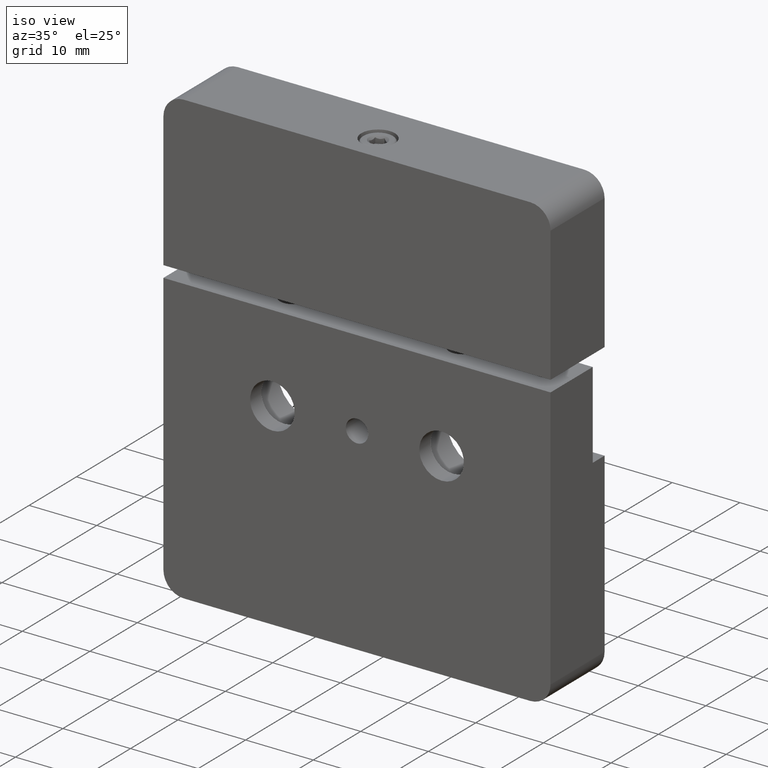
[diagram: clean part render]
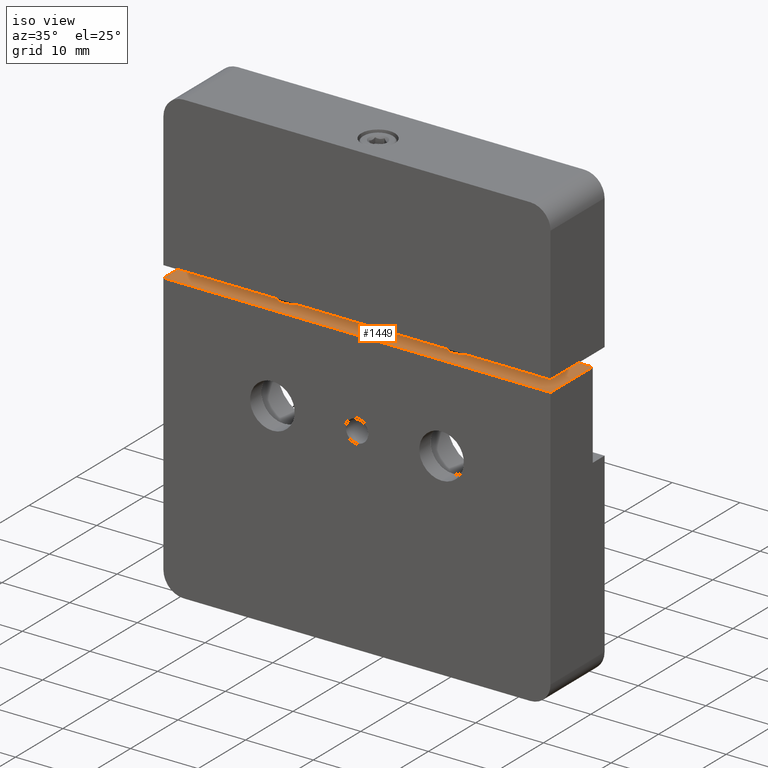
[diagram: same view with one face highlighted and labeled with its STEP entity id]
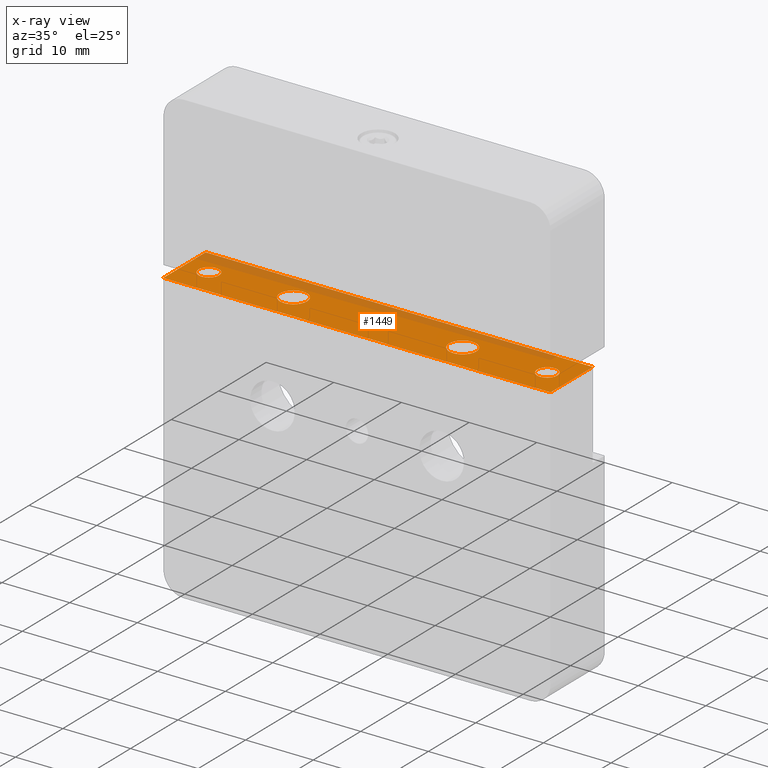
[diagram: x-ray of the same camera — body ghosted, the highlighted face saturated]
A machine part, iso view. The second image highlights one B-rep face of the part: STEP entity #1449.
The next image is the same camera in x-ray: the body ghosted, the highlighted face saturated — about 20% of this face is hidden behind the body in this view.
In plain terms, the highlighted planar face has unit normal (0, 0, -1).
Its self-contained STEP definition (entity closure, byte-faithful):
#47 = CIRCLE ( 'NONE', #2124, 1.024999999999989475 ) ;
#55 = VERTEX_POINT ( 'NONE', #365 ) ;
#57 = FACE_BOUND ( 'NONE', #947, .T. ) ;
#59 = CARTESIAN_POINT ( 'NONE',  ( -28.59999999999998721, 0.000000000000000000, 21.00000000000000000 ) ) ;
#63 = DIRECTION ( 'NONE',  ( 0.000000000000000000, 0.000000000000000000, 1.000000000000000000 ) ) ;
#119 = ORIENTED_EDGE ( 'NONE', *, *, #3440, .F. ) ;
#251 = CIRCLE ( 'NONE', #2560, 2.000000000000000000 ) ;
#278 = VERTEX_POINT ( 'NONE', #1892 ) ;
#297 = DIRECTION ( 'NONE',  ( -1.000000000000000000, 0.000000000000000000, 0.000000000000000000 ) ) ;
#343 = CARTESIAN_POINT ( 'NONE',  ( 23.50000000000000000, 4.450000000000006395, 21.00000000000000000 ) ) ;
#365 = CARTESIAN_POINT ( 'NONE',  ( 26.50000000000000355, 4.450000000000006395, 21.00000000000000000 ) ) ;
#375 = DIRECTION ( 'NONE',  ( 1.000000000000000000, 0.000000000000000000, 0.000000000000000000 ) ) ;
#400 = DIRECTION ( 'NONE',  ( 0.000000000000000000, 0.000000000000000000, 1.000000000000000000 ) ) ;
#431 = EDGE_CURVE ( 'NONE', #820, #2496, #251, .T. ) ;
#489 = VERTEX_POINT ( 'NONE', #2293 ) ;
#536 = DIRECTION ( 'NONE',  ( 0.000000000000000000, 0.000000000000000000, 1.000000000000000000 ) ) ;
#593 = DIRECTION ( 'NONE',  ( -0.000000000000000000, -0.000000000000000000, 1.000000000000000000 ) ) ;
#600 = FACE_BOUND ( 'NONE', #2818, .T. ) ;
#601 = CARTESIAN_POINT ( 'NONE',  ( -28.59999999999998721, 8.900000000000000355, 21.00000000000000000 ) ) ;
#610 = CIRCLE ( 'NONE', #2920, 1.500000000000001332 ) ;
#621 = CARTESIAN_POINT ( 'NONE',  ( -10.50000000000000000, 4.450000000000001954, 21.00000000000000000 ) ) ;
#650 = LINE ( 'NONE', #2356, #720 ) ;
#669 = CARTESIAN_POINT ( 'NONE',  ( 0.000000000000000000, 4.450000000000003730, 21.00000000000000000 ) ) ;
#714 = CARTESIAN_POINT ( 'NONE',  ( 25.00000000000000000, 4.450000000000006395, 21.00000000000000000 ) ) ;
#720 = VECTOR ( 'NONE', #2321, 1000.000000000000000 ) ;
#770 = CARTESIAN_POINT ( 'NONE',  ( 12.50000000000000000, 4.450000000000005507, 21.00000000000000000 ) ) ;
#785 = AXIS2_PLACEMENT_3D ( 'NONE', #1599, #1894, #2157 ) ;
#799 = VERTEX_POINT ( 'NONE', #1685 ) ;
#820 = VERTEX_POINT ( 'NONE', #621 ) ;
#823 = CIRCLE ( 'NONE', #2956, 2.000000000000000000 ) ;
#849 = DIRECTION ( 'NONE',  ( 0.000000000000000000, 0.000000000000000000, -1.000000000000000000 ) ) ;
#857 = EDGE_CURVE ( 'NONE', #941, #1996, #1817, .T. ) ;
#859 = EDGE_LOOP ( 'NONE', ( #119, #1593, #2205, #882 ) ) ;
#878 = CARTESIAN_POINT ( 'NONE',  ( -14.50000000000000000, 4.450000000000001954, 21.00000000000000000 ) ) ;
#879 = ORIENTED_EDGE ( 'NONE', *, *, #1926, .F. ) ;
#882 = ORIENTED_EDGE ( 'NONE', *, *, #1422, .T. ) ;
#905 = AXIS2_PLACEMENT_3D ( 'NONE', #669, #1796, #2881 ) ;
#941 = VERTEX_POINT ( 'NONE', #1187 ) ;
#947 = EDGE_LOOP ( 'NONE', ( #3046, #2278 ) ) ;
#958 = CIRCLE ( 'NONE', #905, 1.024999999999989475 ) ;
#1037 = CARTESIAN_POINT ( 'NONE',  ( -23.50000000000000000, 4.450000000000000178, 21.00000000000000000 ) ) ;
#1062 = CARTESIAN_POINT ( 'NONE',  ( -25.00000000000000000, 4.450000000000000178, 21.00000000000000000 ) ) ;
#1146 = DIRECTION ( 'NONE',  ( -1.000000000000000000, 0.000000000000000000, 0.000000000000000000 ) ) ;
#1187 = CARTESIAN_POINT ( 'NONE',  ( 10.50000000000000000, 4.450000000000005507, 21.00000000000000000 ) ) ;
#1235 = CIRCLE ( 'NONE', #3236, 1.500000000000001332 ) ;
#1245 = VERTEX_POINT ( 'NONE', #1037 ) ;
#1378 = CARTESIAN_POINT ( 'NONE',  ( 28.60000000000000142, 0.000000000000000000, 21.00000000000000000 ) ) ;
#1387 = CARTESIAN_POINT ( 'NONE',  ( -12.50000000000000000, 4.450000000000001954, 21.00000000000000000 ) ) ;
#1395 = CARTESIAN_POINT ( 'NONE',  ( -26.50000000000000355, 4.450000000000000178, 21.00000000000000000 ) ) ;
#1416 = DIRECTION ( 'NONE',  ( 1.000000000000000000, 0.000000000000000000, 0.000000000000000000 ) ) ;
#1422 = EDGE_CURVE ( 'NONE', #3290, #2281, #1680, .T. ) ;
#1433 = AXIS2_PLACEMENT_3D ( 'NONE', #770, #2450, #3528 ) ;
#1436 = CARTESIAN_POINT ( 'NONE',  ( -28.59999999999998721, 11.40000000000000036, 21.00000000000000000 ) ) ;
#1444 = VERTEX_POINT ( 'NONE', #343 ) ;
#1449 = ADVANCED_FACE ( 'NONE', ( #2250, #2503, #1978, #57, #600, #2303 ), #3313, .F. ) ;
#1453 = ORIENTED_EDGE ( 'NONE', *, *, #431, .F. ) ;
#1503 = CARTESIAN_POINT ( 'NONE',  ( 1.024999999999989475, 4.450000000000003730, 21.00000000000000000 ) ) ;
#1581 = DIRECTION ( 'NONE',  ( -1.000000000000000000, 0.000000000000000000, 0.000000000000000000 ) ) ;
#1593 = ORIENTED_EDGE ( 'NONE', *, *, #2407, .T. ) ;
#1599 = CARTESIAN_POINT ( 'NONE',  ( -25.00000000000000000, 4.450000000000000178, 21.00000000000000000 ) ) ;
#1602 = DIRECTION ( 'NONE',  ( 0.000000000000000000, 0.000000000000000000, 1.000000000000000000 ) ) ;
#1612 = CARTESIAN_POINT ( 'NONE',  ( -28.59999999999998721, 11.40000000000000036, 21.00000000000000000 ) ) ;
#1630 = DIRECTION ( 'NONE',  ( 1.000000000000000000, 0.000000000000000000, 0.000000000000000000 ) ) ;
#1655 = DIRECTION ( 'NONE',  ( 1.000000000000000000, 0.000000000000000000, 0.000000000000000000 ) ) ;
#1680 = LINE ( 'NONE', #1963, #2044 ) ;
#1685 = CARTESIAN_POINT ( 'NONE',  ( -1.024999999999989475, 4.450000000000003730, 21.00000000000000000 ) ) ;
#1694 = LINE ( 'NONE', #601, #2815 ) ;
#1717 = DIRECTION ( 'NONE',  ( -1.000000000000000000, 0.000000000000000000, 0.000000000000000000 ) ) ;
#1723 = CARTESIAN_POINT ( 'NONE',  ( 25.00000000000000000, 4.450000000000006395, 21.00000000000000000 ) ) ;
#1726 = ORIENTED_EDGE ( 'NONE', *, *, #2163, .F. ) ;
#1779 = CARTESIAN_POINT ( 'NONE',  ( 14.50000000000000000, 4.450000000000005507, 21.00000000000000000 ) ) ;
#1796 = DIRECTION ( 'NONE',  ( -0.000000000000000000, -0.000000000000000000, 1.000000000000000000 ) ) ;
#1817 = CIRCLE ( 'NONE', #2218, 2.000000000000000000 ) ;
#1831 = EDGE_CURVE ( 'NONE', #489, #3290, #2423, .T. ) ;
#1852 = EDGE_LOOP ( 'NONE', ( #3050, #2685 ) ) ;
#1892 = CARTESIAN_POINT ( 'NONE',  ( 28.60000000000000142, 8.899999999999998579, 21.00000000000000000 ) ) ;
#1894 = DIRECTION ( 'NONE',  ( 0.000000000000000000, 0.000000000000000000, 1.000000000000000000 ) ) ;
#1926 = EDGE_CURVE ( 'NONE', #2496, #820, #823, .T. ) ;
#1963 = CARTESIAN_POINT ( 'NONE',  ( -28.59999999999998721, 0.000000000000000000, 21.00000000000000000 ) ) ;
#1973 = CARTESIAN_POINT ( 'NONE',  ( 0.000000000000000000, 4.450000000000003730, 21.00000000000000000 ) ) ;
#1978 = FACE_BOUND ( 'NONE', #1852, .T. ) ;
#1996 = VERTEX_POINT ( 'NONE', #1779 ) ;
#2012 = AXIS2_PLACEMENT_3D ( 'NONE', #1062, #1602, #2490 ) ;
#2044 = VECTOR ( 'NONE', #1416, 1000.000000000000000 ) ;
#2124 = AXIS2_PLACEMENT_3D ( 'NONE', #1973, #593, #375 ) ;
#2157 = DIRECTION ( 'NONE',  ( 1.000000000000000000, 0.000000000000000000, 0.000000000000000000 ) ) ;
#2163 = EDGE_CURVE ( 'NONE', #55, #1444, #1235, .T. ) ;
#2169 = DIRECTION ( 'NONE',  ( 0.000000000000000000, 0.000000000000000000, 1.000000000000000000 ) ) ;
#2205 = ORIENTED_EDGE ( 'NONE', *, *, #1831, .T. ) ;
#2218 = AXIS2_PLACEMENT_3D ( 'NONE', #2222, #3303, #297 ) ;
#2222 = CARTESIAN_POINT ( 'NONE',  ( 12.50000000000000000, 4.450000000000005507, 21.00000000000000000 ) ) ;
#2250 = FACE_BOUND ( 'NONE', #3099, .T. ) ;
#2272 = EDGE_CURVE ( 'NONE', #1996, #941, #2926, .T. ) ;
#2278 = ORIENTED_EDGE ( 'NONE', *, *, #857, .F. ) ;
#2281 = VERTEX_POINT ( 'NONE', #1378 ) ;
#2282 = VERTEX_POINT ( 'NONE', #1395 ) ;
#2293 = CARTESIAN_POINT ( 'NONE',  ( -28.60000000000000497, 8.899999999999998579, 21.00000000000000000 ) ) ;
#2299 = EDGE_CURVE ( 'NONE', #1245, #2282, #2534, .T. ) ;
#2303 = FACE_OUTER_BOUND ( 'NONE', #859, .T. ) ;
#2321 = DIRECTION ( 'NONE',  ( -0.000000000000000000, -1.000000000000000000, -0.000000000000000000 ) ) ;
#2356 = CARTESIAN_POINT ( 'NONE',  ( 28.60000000000000142, 11.40000000000000036, 21.00000000000000000 ) ) ;
#2407 = EDGE_CURVE ( 'NONE', #278, #489, #1694, .T. ) ;
#2423 = LINE ( 'NONE', #1612, #2786 ) ;
#2450 = DIRECTION ( 'NONE',  ( 0.000000000000000000, 0.000000000000000000, 1.000000000000000000 ) ) ;
#2490 = DIRECTION ( 'NONE',  ( 1.000000000000000000, 0.000000000000000000, 0.000000000000000000 ) ) ;
#2496 = VERTEX_POINT ( 'NONE', #878 ) ;
#2503 = FACE_BOUND ( 'NONE', #3539, .T. ) ;
#2523 = EDGE_CURVE ( 'NONE', #799, #2586, #47, .T. ) ;
#2524 = ORIENTED_EDGE ( 'NONE', *, *, #3100, .F. ) ;
#2534 = CIRCLE ( 'NONE', #785, 1.500000000000001332 ) ;
#2560 = AXIS2_PLACEMENT_3D ( 'NONE', #1387, #2169, #1630 ) ;
#2586 = VERTEX_POINT ( 'NONE', #1503 ) ;
#2685 = ORIENTED_EDGE ( 'NONE', *, *, #3139, .F. ) ;
#2709 = DIRECTION ( 'NONE',  ( -0.000000000000000000, -1.000000000000000000, -0.000000000000000000 ) ) ;
#2786 = VECTOR ( 'NONE', #2709, 1000.000000000000000 ) ;
#2815 = VECTOR ( 'NONE', #1717, 1000.000000000000000 ) ;
#2818 = EDGE_LOOP ( 'NONE', ( #1453, #879 ) ) ;
#2881 = DIRECTION ( 'NONE',  ( 1.000000000000000000, 0.000000000000000000, 0.000000000000000000 ) ) ;
#2897 = EDGE_CURVE ( 'NONE', #1444, #55, #610, .T. ) ;
#2920 = AXIS2_PLACEMENT_3D ( 'NONE', #1723, #63, #1146 ) ;
#2923 = CIRCLE ( 'NONE', #2012, 1.500000000000001332 ) ;
#2926 = CIRCLE ( 'NONE', #1433, 2.000000000000000000 ) ;
#2955 = AXIS2_PLACEMENT_3D ( 'NONE', #1436, #849, #3330 ) ;
#2956 = AXIS2_PLACEMENT_3D ( 'NONE', #3029, #536, #1655 ) ;
#3029 = CARTESIAN_POINT ( 'NONE',  ( -12.50000000000000000, 4.450000000000001954, 21.00000000000000000 ) ) ;
#3046 = ORIENTED_EDGE ( 'NONE', *, *, #2272, .F. ) ;
#3050 = ORIENTED_EDGE ( 'NONE', *, *, #2299, .F. ) ;
#3059 = ORIENTED_EDGE ( 'NONE', *, *, #2523, .F. ) ;
#3099 = EDGE_LOOP ( 'NONE', ( #2524, #3059 ) ) ;
#3100 = EDGE_CURVE ( 'NONE', #2586, #799, #958, .T. ) ;
#3139 = EDGE_CURVE ( 'NONE', #2282, #1245, #2923, .T. ) ;
#3236 = AXIS2_PLACEMENT_3D ( 'NONE', #714, #400, #1581 ) ;
#3290 = VERTEX_POINT ( 'NONE', #59 ) ;
#3303 = DIRECTION ( 'NONE',  ( 0.000000000000000000, 0.000000000000000000, 1.000000000000000000 ) ) ;
#3313 = PLANE ( 'NONE',  #2955 ) ;
#3330 = DIRECTION ( 'NONE',  ( -1.000000000000000000, 0.000000000000000000, -0.000000000000000000 ) ) ;
#3440 = EDGE_CURVE ( 'NONE', #278, #2281, #650, .T. ) ;
#3470 = ORIENTED_EDGE ( 'NONE', *, *, #2897, .F. ) ;
#3528 = DIRECTION ( 'NONE',  ( -1.000000000000000000, 0.000000000000000000, 0.000000000000000000 ) ) ;
#3539 = EDGE_LOOP ( 'NONE', ( #1726, #3470 ) ) ;